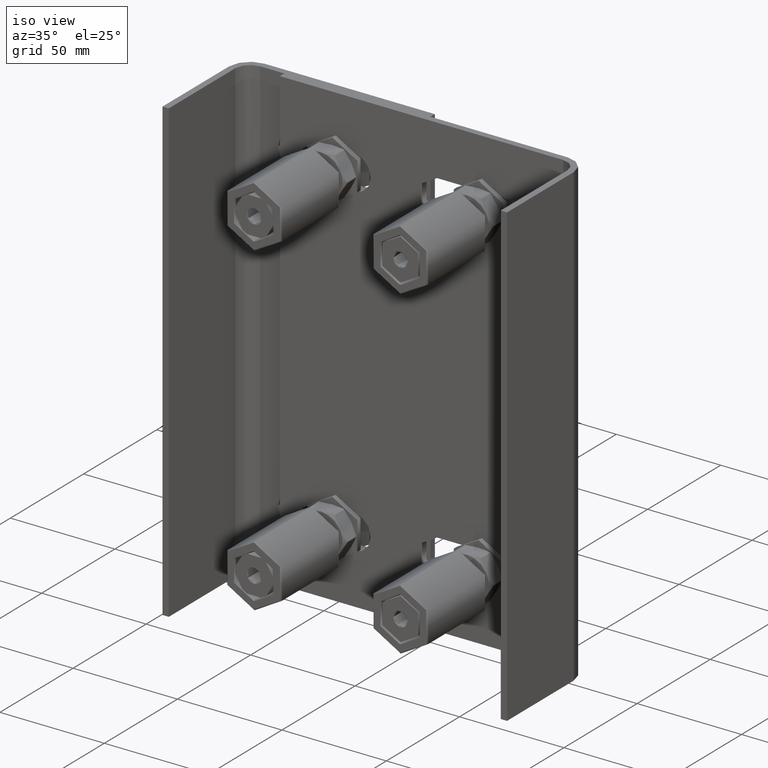
[diagram: clean part render]
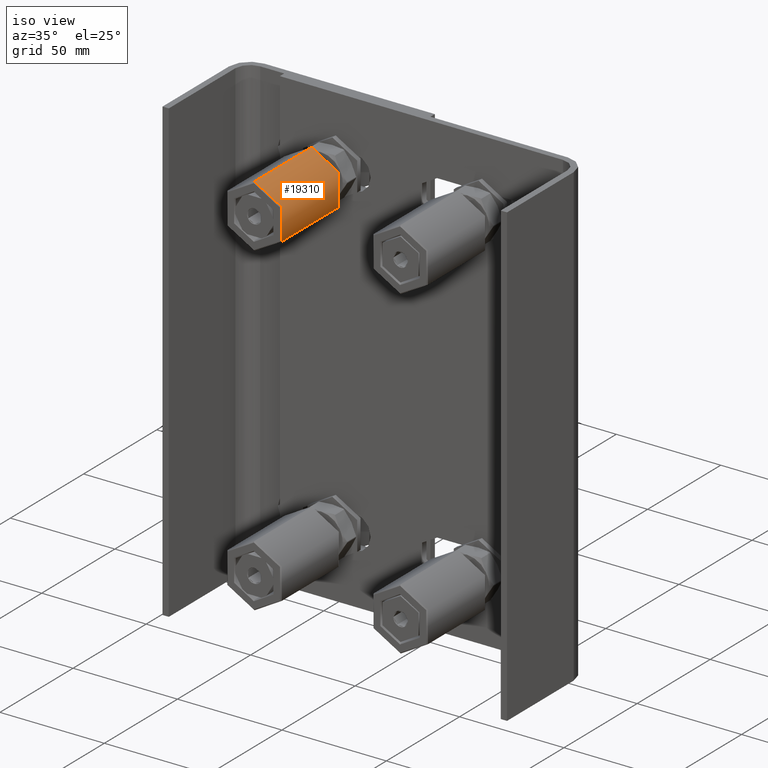
[diagram: same view with one face highlighted and labeled with its STEP entity id]
A machine part, iso view. The second image highlights one B-rep face of the part: STEP entity #19310.
In plain terms, the highlighted cylindrical surface (partial cylindrical patch) has radius 15 mm, axis along (0, 1, 0).
Its self-contained STEP definition (entity closure, byte-faithful):
#8 = ORIENTED_EDGE ( 'NONE', *, *, #10403, .T. ) ;
#121 = CARTESIAN_POINT ( 'NONE',  ( 1.836970198721029589E-15, 19.49999999999999289, -15.00000000000000000 ) ) ;
#1037 = CARTESIAN_POINT ( 'NONE',  ( 0.000000000000000000, -19.49999999999997868, 15.00000000000000000 ) ) ;
#1326 = DIRECTION ( 'NONE',  ( 0.000000000000000000, 0.000000000000000000, 1.000000000000000000 ) ) ;
#2124 = AXIS2_PLACEMENT_3D ( 'NONE', #19731, #8071, #13125 ) ;
#2306 = DIRECTION ( 'NONE',  ( 0.000000000000000000, 0.000000000000000000, -1.000000000000000000 ) ) ;
#3241 = CYLINDRICAL_SURFACE ( 'NONE', #5475, 15.00000000000000000 ) ;
#4493 = CARTESIAN_POINT ( 'NONE',  ( 0.000000000000000000, 20.00000000000000711, 0.000000000000000000 ) ) ;
#4805 = EDGE_CURVE ( 'NONE', #8278, #6528, #20333, .T. ) ;
#5316 = VECTOR ( 'NONE', #13066, 1000.000000000000000 ) ;
#5475 = AXIS2_PLACEMENT_3D ( 'NONE', #4493, #16064, #1326 ) ;
#5504 = EDGE_LOOP ( 'NONE', ( #7228, #11225, #8, #17572 ) ) ;
#5554 = DIRECTION ( 'NONE',  ( -0.000000000000000000, 1.000000000000000000, -0.000000000000000000 ) ) ;
#6528 = VERTEX_POINT ( 'NONE', #121 ) ;
#7228 = ORIENTED_EDGE ( 'NONE', *, *, #11151, .T. ) ;
#7429 = CARTESIAN_POINT ( 'NONE',  ( 0.000000000000000000, 19.49999999999999289, 0.000000000000000000 ) ) ;
#8071 = DIRECTION ( 'NONE',  ( -0.000000000000000000, 1.000000000000000000, -0.000000000000000000 ) ) ;
#8166 = CARTESIAN_POINT ( 'NONE',  ( 0.000000000000000000, 20.00000000000000711, 15.00000000000000000 ) ) ;
#8278 = VERTEX_POINT ( 'NONE', #13435 ) ;
#8879 = DIRECTION ( 'NONE',  ( 0.000000000000000000, -1.000000000000000000, 0.000000000000000000 ) ) ;
#10221 = LINE ( 'NONE', #8166, #5316 ) ;
#10403 = EDGE_CURVE ( 'NONE', #6528, #19661, #14122, .T. ) ;
#10660 = EDGE_CURVE ( 'NONE', #21274, #19661, #10221, .T. ) ;
#11151 = EDGE_CURVE ( 'NONE', #21274, #8278, #15673, .T. ) ;
#11225 = ORIENTED_EDGE ( 'NONE', *, *, #4805, .T. ) ;
#11989 = FACE_OUTER_BOUND ( 'NONE', #5504, .T. ) ;
#13066 = DIRECTION ( 'NONE',  ( -0.000000000000000000, 1.000000000000000000, -0.000000000000000000 ) ) ;
#13125 = DIRECTION ( 'NONE',  ( 0.000000000000000000, 0.000000000000000000, 1.000000000000000000 ) ) ;
#13435 = CARTESIAN_POINT ( 'NONE',  ( 1.836970198721029589E-15, -19.49999999999997868, -15.00000000000000000 ) ) ;
#14122 = CIRCLE ( 'NONE', #16539, 15.00000000000000000 ) ;
#15673 = CIRCLE ( 'NONE', #2124, 15.00000000000000000 ) ;
#16064 = DIRECTION ( 'NONE',  ( -0.000000000000000000, 1.000000000000000000, -0.000000000000000000 ) ) ;
#16539 = AXIS2_PLACEMENT_3D ( 'NONE', #7429, #8879, #2306 ) ;
#17572 = ORIENTED_EDGE ( 'NONE', *, *, #10660, .F. ) ;
#18429 = CARTESIAN_POINT ( 'NONE',  ( 0.000000000000000000, 19.49999999999999289, 15.00000000000000000 ) ) ;
#19310 = ADVANCED_FACE ( 'NONE', ( #11989 ), #3241, .T. ) ;
#19661 = VERTEX_POINT ( 'NONE', #18429 ) ;
#19731 = CARTESIAN_POINT ( 'NONE',  ( 0.000000000000000000, -19.49999999999997868, 0.000000000000000000 ) ) ;
#20122 = CARTESIAN_POINT ( 'NONE',  ( 1.836970198721029589E-15, 20.00000000000000711, -15.00000000000000000 ) ) ;
#20333 = LINE ( 'NONE', #20122, #20604 ) ;
#20604 = VECTOR ( 'NONE', #5554, 1000.000000000000000 ) ;
#21274 = VERTEX_POINT ( 'NONE', #1037 ) ;